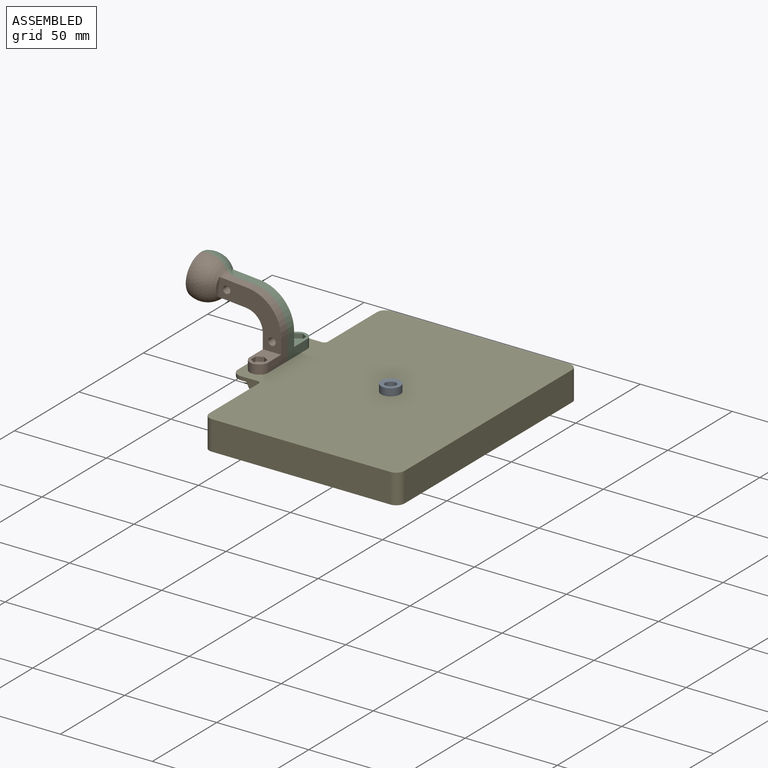
[diagram: assembled view]
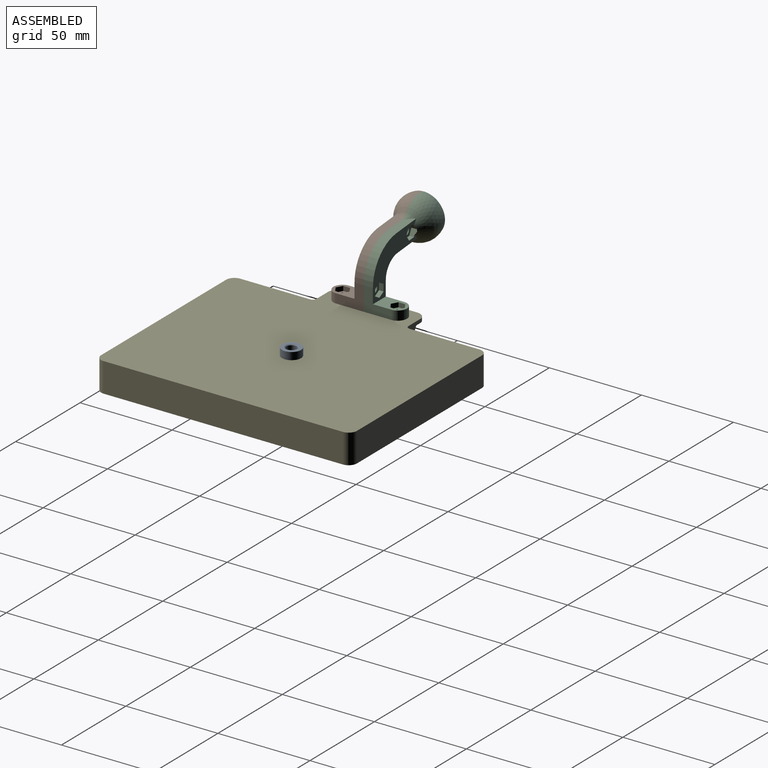
[diagram: assembled view, second angle]
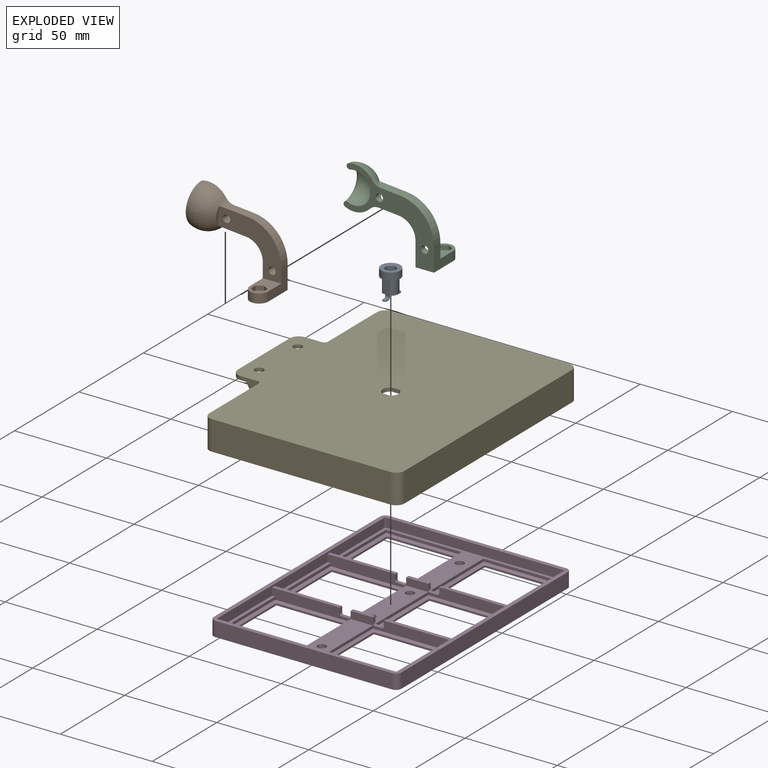
[diagram: exploded view]
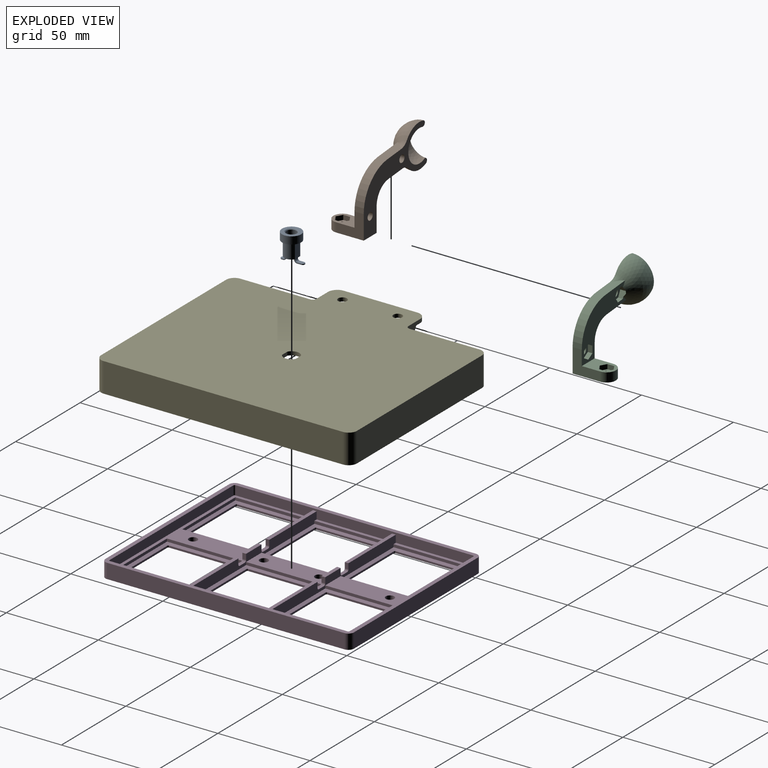
[diagram: exploded view, second angle]
ASSEMBLY  parts=5 mates=5
PART A: 36 faces, bbox 12.8x10.4x14.5 mm
  f0: plane 7.8x6.56mm, normal (0,0,1), area 41.9mm2, adj f1,f2,f12,f13,f15,f16,f17,f18
  f1: cylinder r=3.9mm len=8mm, axis (0,0,1), area 62.3mm2, adj f0,f3,f12,f13
  f2: cylinder r=3.9mm len=8mm, axis (0,0,1), area 62.3mm2, adj f0,f3,f12,f13
  f3: plane 10.4x10.4mm, normal (0,0,1), area 40.7mm2, adj f1,f2,f4,f12,f13
  f4: cylinder r=5.2mm len=10.4mm, axis (0,0,1), area 130.7mm2, adj f3,f5
  f5: plane 10.4x10.4mm, normal (0,0,-1), area 52.8mm2, adj f4,f6
  f6: cone r=2.8mm half-angle=45deg, axis (0,0,-1), area 10.7mm2, adj f5,f7
  f7: cylinder r=2.8mm len=9.1mm, axis (0,0,1), area 160.1mm2, adj f6,f8
  f8: plane 5.6x5.6mm, normal (0,0,-1), area 21.5mm2, adj f7,f9
  f9: cylinder r=1mm len=6.1mm, axis (0,0,1), area 38.3mm2, adj f8,f10
  f10: torus R=0.4mm, axis (0,0,1), area 4.6mm2, adj f9,f11
  f11: plane 0.8x0.8mm, normal (0,0,-1), area 0.5mm2, adj f10
  f12: plane 8x4.22mm, normal (1,0,0), area 33.8mm2, adj f0,f1,f2,f3
  f13: plane 8x4.22mm, normal (-1,0,0), area 33.8mm2, adj f0,f1,f2,f3
  f14: plane 0.5x0.12mm, normal (-1,0,0), area 0.1mm2, adj f21,f22,f34,f35
  f15: plane 3.9x2.3mm, normal (0,1,0), area 2.6mm2, adj f0,f16,f18,f19,f20,f21,f22,f35
  f16: plane 2.32x0.8mm, normal (-1,0,0), area 1.9mm2, adj f0,f15,f17,f19
  f17: plane 3.9x2.3mm, normal (0,-1,0), area 2.6mm2, adj f0,f16,f18,f19,f20,f21,f22,f34
  f18: plane 2.32x0.8mm, normal (1,0,0), area 1.9mm2, adj f0,f15,f17,f20
  f19: cylinder r=1mm len=2.32mm, axis (0,-1,0), area 3.6mm2, adj f15,f16,f17,f21
  f20: cylinder r=1.5mm len=2.32mm, axis (0,-1,0), area 5.5mm2, adj f15,f17,f18,f22
  f21: plane 3.5x2.32mm, normal (0,0,-1), area 7.6mm2, adj f14,f15,f17,f19,f34,f35
  f22: plane 3.5x2.32mm, normal (0,0,1), area 7.6mm2, adj f14,f15,f17,f20,f34,f35
  f23: plane 0.5x0.12mm, normal (1,0,0), area 0.1mm2, adj f30,f31,f32,f33
  f24: plane 2.5x2.4mm, normal (0,1,0), area 1.9mm2, adj f0,f25,f27,f28,f29,f30,f31,f33
  f25: plane 2.32x1mm, normal (-1,0,0), area 2.3mm2, adj f0,f24,f26,f28
  f26: plane 2.5x2.4mm, normal (0,-1,0), area 1.9mm2, adj f0,f25,f27,f28,f29,f30,f31,f32
  f27: plane 2.32x1mm, normal (1,0,0), area 2.3mm2, adj f0,f24,f26,f29
  f28: cylinder r=1.5mm len=2.32mm, axis (0,1,0), area 5.5mm2, adj f24,f25,f26,f30
  f29: cylinder r=1mm len=2.32mm, axis (0,1,0), area 3.6mm2, adj f24,f26,f27,f31
  f30: plane 2.32x2mm, normal (0,0,1), area 4.1mm2, adj f23,f24,f26,f28,f32,f33
  f31: plane 2.32x2mm, normal (0,0,-1), area 4.1mm2, adj f23,f24,f26,f29,f32,f33
  f32: cylinder r=1.1mm len=1.1mm, axis (0,0,-1), area 0.9mm2, adj f23,f26,f30,f31
  f33: cylinder r=1.1mm len=1.1mm, axis (0,0,1), area 0.9mm2, adj f23,f24,f30,f31
  f34: cylinder r=1.1mm len=1.1mm, axis (0,0,1), area 0.9mm2, adj f14,f17,f21,f22
  f35: cylinder r=1.1mm len=1.1mm, axis (0,0,-1), area 0.9mm2, adj f14,f15,f21,f22
PART B: 26 faces, bbox 20x49.2x42.4 mm
  f0: cylinder r=2mm len=5mm, axis (-1,0,0), area 62.8mm2, adj f10,f11
  f1: cylinder r=2mm len=4mm, axis (0,0,1), area 31.4mm2, adj f13,f17
  f2: plane 15x10mm, normal (0,0,1), area 102.7mm2, adj f6,f7,f10,f12,f18,f19,f20,f21
  f3: torus R=11mm, axis (0,1,0.09), area 32.4mm2, adj f4,f9,f11,f16,f25
  f4: plane 15.31x5mm, normal (0,-0.09,1), area 66.6mm2, adj f3,f5,f10,f11
  f5: cylinder r=20mm len=19.92mm, axis (1,0,0), area 148.4mm2, adj f4,f6,f10,f11
  f6: plane 15x13mm, normal (0,-1,0), area 115mm2, adj f2,f5,f10,f11,f12,f13
  f7: plane 15x13mm, normal (0,1,0), area 115mm2, adj f2,f8,f10,f11,f12,f13
  f8: cylinder r=10mm len=9.96mm, axis (1,0,0), area 74.2mm2, adj f7,f9,f10,f11
  f9: plane 15.31x5mm, normal (0,0.09,-1), area 66.6mm2, adj f3,f8,f10,f11
  f10: plane 34.44x29.26mm, normal (-1,0,0), area 431.1mm2, adj f0,f2,f4,f5,f6,f7,f8,f9
  f11: plane 49.11x41.8mm, normal (1,0,0), area 588.6mm2, adj f0,f3,f4,f5,f6,f7,f8,f9
  f12: cylinder r=5mm len=10mm, axis (0,0,1), area 78.5mm2, adj f2,f6,f7,f13
  f13: plane 20x10mm, normal (0,0,-1), area 176.7mm2, adj f1,f6,f7,f11,f12
  f14: sphere r=8.7mm, area 319.1mm2, adj f11,f15
  f15: torus R=9.58mm, axis (0,1,0.09), area 137.1mm2, adj f11,f14,f16
  f16: sphere r=11.7mm, area 484mm2, adj f3,f11,f15
  f17: plane 7.51x6.5mm, normal (0,0,1), area 24mm2, adj f1,f18,f19,f20,f21,f22,f23
  f18: plane 3.25x2.5mm, normal (-0.87,0.5,0), area 9.4mm2, adj f2,f17,f19,f23
  f19: plane 3.25x2.5mm, normal (-0.87,-0.5,0), area 9.4mm2, adj f2,f17,f18,f20
  f20: plane 3.75x2.5mm, normal (0,-1,0), area 9.4mm2, adj f2,f17,f19,f21
  f21: plane 3.25x2.5mm, normal (0.87,-0.5,0), area 9.4mm2, adj f2,f17,f20,f22
  f22: plane 3.25x2.5mm, normal (0.87,0.5,0), area 9.4mm2, adj f2,f17,f21,f23
  f23: plane 3.75x2.5mm, normal (0,1,0), area 9.4mm2, adj f2,f17,f18,f22
  f24: cylinder r=2mm len=5mm, axis (-1,0,0), area 62.8mm2, adj f10,f11
  f25: plane 9.96x2.07mm, normal (0,-1,-0.09), area 14.3mm2, adj f3,f10
PART C: 40 faces, bbox 20.5x49.7x42.9 mm
  f0: torus R=11mm, axis (0,-1,-0.09), area 46.7mm2, adj f1,f6,f11,f12,f17,f33,f38,f39
  f1: plane 34.61x29.44mm, normal (1,0,0), area 371.8mm2, adj f0,f4,f6,f7,f8,f9,f10,f11
  f2: cylinder r=2mm len=4mm, axis (1,0,0), area 31.4mm2, adj f12,f32
  f3: cylinder r=2mm len=4mm, axis (1,0,0), area 31.4mm2, adj f12,f25
  f4: plane 15x10mm, normal (0,0,1), area 102.7mm2, adj f1,f8,f9,f13,f19,f20,f21,f22
  f5: cylinder r=2mm len=4mm, axis (0,0,1), area 31.4mm2, adj f14,f18
  f6: plane 15.84x5.53mm, normal (0,-0.09,1), area 66.6mm2, adj f0,f1,f7,f12
  f7: cylinder r=20mm len=19.92mm, axis (-1,0,0), area 148.4mm2, adj f1,f6,f8,f12
  f8: plane 15x13mm, normal (0,-1,0), area 115mm2, adj f1,f4,f7,f12,f13,f14
  f9: plane 15x13mm, normal (0,1,0), area 115mm2, adj f1,f4,f10,f12,f13,f14
  f10: cylinder r=10mm len=9.96mm, axis (-1,0,0), area 74.2mm2, adj f1,f9,f11,f12
  f11: plane 15.84x5.53mm, normal (0,0.09,-1), area 66.6mm2, adj f0,f1,f10,f12
  f12: plane 49.11x41.8mm, normal (-1,0,0), area 588.6mm2, adj f0,f2,f3,f6,f7,f8,f9,f10
  f13: cylinder r=5mm len=10mm, axis (0,0,1), area 78.5mm2, adj f4,f8,f9,f14
  f14: plane 20x10mm, normal (0,0,-1), area 176.7mm2, adj f5,f8,f9,f12,f13
  f15: sphere r=8.7mm, area 319.1mm2, adj f12,f16
  f16: torus R=9.58mm, axis (0,-1,-0.09), area 137.1mm2, adj f12,f15,f17
  f17: sphere r=11.7mm, area 484mm2, adj f0,f12,f16
  f18: plane 7.51x6.5mm, normal (0,0,1), area 24mm2, adj f5,f19,f20,f21,f22,f23,f24
  f19: plane 3.25x2.5mm, normal (0.87,0.5,0), area 9.4mm2, adj f4,f18,f20,f24
  f20: plane 3.75x2.5mm, normal (0,1,0), area 9.4mm2, adj f4,f18,f19,f21
  f21: plane 3.25x2.5mm, normal (-0.87,0.5,0), area 9.4mm2, adj f4,f18,f20,f22
  f22: plane 3.25x2.5mm, normal (-0.87,-0.5,0), area 9.4mm2, adj f4,f18,f21,f23
  f23: plane 3.75x2.5mm, normal (0,-1,0), area 9.4mm2, adj f4,f18,f22,f24
  f24: plane 3.25x2.5mm, normal (0.87,-0.5,0), area 9.4mm2, adj f4,f18,f19,f23
  f25: plane 7.51x6.5mm, normal (1,0,0), area 24mm2, adj f3,f26,f27,f28,f29,f30,f31
  f26: plane 3.25x2.5mm, normal (0,-0.5,-0.87), area 9.4mm2, adj f1,f25,f27,f31
  f27: plane 3.25x2.5mm, normal (0,0.5,-0.87), area 9.4mm2, adj f1,f25,f26,f28
  f28: plane 3.75x2.5mm, normal (0,1,0), area 9.4mm2, adj f1,f25,f27,f29
  f29: plane 3.25x2.5mm, normal (0,0.5,0.87), area 9.4mm2, adj f1,f25,f28,f30
  f30: plane 3.25x2.5mm, normal (0,-0.5,0.87), area 9.4mm2, adj f1,f25,f29,f31
  f31: plane 3.75x2.5mm, normal (0,-1,0), area 9.4mm2, adj f1,f25,f26,f30
  f32: plane 7.48x6.8mm, normal (1,0,0), area 24mm2, adj f2,f33,f34,f35,f36,f37,f38
  f33: plane 3.58x3.15mm, normal (0,-0.82,-0.57), area 11.3mm2, adj f0,f1,f32,f34,f38,f39
  f34: plane 3.74x2.5mm, normal (0,0.09,-1), area 9.4mm2, adj f1,f32,f33,f35
  f35: plane 3.4x2.5mm, normal (0,0.91,-0.42), area 9.4mm2, adj f1,f32,f34,f36
  f36: plane 3.07x2.5mm, normal (0,0.82,0.57), area 9.4mm2, adj f1,f32,f35,f37
  f37: plane 3.74x2.5mm, normal (0,-0.09,1), area 9.4mm2, adj f1,f32,f36,f38
  f38: plane 3.58x3.48mm, normal (0,-0.91,0.42), area 11.3mm2, adj f0,f1,f32,f33,f37,f39
  f39: plane 1.76x0.62mm, normal (-1,0,0), area 0.6mm2, adj f0,f33,f38
PART D: 175 faces, bbox 102x135x8 mm
  f0: plane 12x2mm, normal (0,0,1), area 24mm2, adj f4,f5,f165,f174
  f1: plane 36.75x2mm, normal (0,0,1), area 73.5mm2, adj f4,f5,f145,f169
  f2: plane 12x2mm, normal (0,0,1), area 24mm2, adj f6,f7,f159,f160
  f3: plane 36.75x2mm, normal (0,0,1), area 73.5mm2, adj f6,f7,f145,f155
  f4: plane 97.5x5.5mm, normal (0,-1,0), area 465.9mm2, adj f0,f1,f14,f16,f51,f52,f59,f61
  f5: plane 97.5x5.5mm, normal (0,1,0), area 465.9mm2, adj f0,f1,f8,f9,f11,f15,f49,f62
  f6: plane 97.5x5.5mm, normal (0,1,0), area 465.9mm2, adj f2,f3,f10,f12,f13,f53,f55,f56
  f7: plane 97.5x5.5mm, normal (0,-1,0), area 465.9mm2, adj f2,f3,f8,f9,f11,f15,f49,f62
  f8: plane 41x1.75mm, normal (0,0,1), area 71.8mm2, adj f5,f7,f65,f149
  f9: plane 41x12mm, normal (0,0,1), area 458.8mm2, adj f5,f7,f63,f64,f141,f142
  f10: plane 97.5x42.75mm, normal (0,0,1), area 789.3mm2, adj f6,f53,f54,f55,f56,f57,f58,f140
  f11: plane 41x1.75mm, normal (0,0,1), area 71.8mm2, adj f5,f7,f62,f145
  f12: plane 41x41mm, normal (0,0,1), area 26.7mm2, adj f6,f53,f54,f55,f92,f93,f94,f95
  f13: plane 41x41mm, normal (0,0,1), area 26.7mm2, adj f6,f56,f57,f58,f100,f101,f102,f103
  f14: plane 41x41mm, normal (0,0,1), area 26.7mm2, adj f4,f59,f60,f61,f116,f117,f118,f119
  f15: plane 41x41mm, normal (0,0,1), area 26.7mm2, adj f5,f7,f62,f63,f132,f133,f134,f135
  f16: plane 41x41mm, normal (0,0,1), area 26.7mm2, adj f4,f51,f52,f66,f124,f125,f126,f127
  f17: plane 36x1mm, normal (0,1,0), area 36mm2, adj f50,f88,f91,f111
  f18: plane 36x1mm, normal (1,0,0), area 36mm2, adj f50,f88,f89,f115
  f19: plane 36x1mm, normal (0,-1,0), area 36mm2, adj f50,f89,f90,f112
  f20: plane 36x1mm, normal (0,1,0), area 36mm2, adj f50,f84,f87,f132
  f21: plane 36x1mm, normal (1,0,0), area 36mm2, adj f50,f84,f85,f135
  f22: plane 36x1mm, normal (0,-1,0), area 36mm2, adj f50,f85,f86,f139
  f23: plane 36x1mm, normal (0,1,0), area 36mm2, adj f50,f80,f83,f119
  f24: plane 36x1mm, normal (1,0,0), area 36mm2, adj f50,f80,f81,f123
  f25: plane 36x1mm, normal (0,-1,0), area 36mm2, adj f50,f81,f82,f120
  f26: plane 36x1mm, normal (0,1,0), area 36mm2, adj f50,f76,f79,f127
  f27: plane 36x1mm, normal (1,0,0), area 36mm2, adj f50,f76,f77,f131
  f28: plane 36x1mm, normal (0,-1,0), area 36mm2, adj f50,f77,f78,f128
  f29: plane 36x1mm, normal (0,1,0), area 36mm2, adj f50,f72,f75,f103
  f30: plane 36x1mm, normal (1,0,0), area 36mm2, adj f50,f72,f73,f107
  f31: plane 36x1mm, normal (0,-1,0), area 36mm2, adj f50,f73,f74,f104
  f32: plane 36x1mm, normal (0,1,0), area 36mm2, adj f50,f68,f71,f95
  f33: plane 36x1mm, normal (1,0,0), area 36mm2, adj f50,f68,f69,f99
  f34: plane 36x1mm, normal (0,-1,0), area 36mm2, adj f50,f69,f70,f96
  f35: plane 96x8mm, normal (0,1,0), area 768mm2, adj f36,f47,f50,f152
  f36: cylinder r=3mm len=8mm, axis (0,0,-1), area 37.7mm2, adj f35,f37,f50,f152
  f37: plane 129x8mm, normal (-1,0,0), area 1032mm2, adj f36,f38,f50,f152
  f38: cylinder r=3mm len=8mm, axis (0,0,-1), area 37.7mm2, adj f37,f39,f50,f152
  f39: plane 96x8mm, normal (0,-1,0), area 768mm2, adj f38,f40,f50,f152
  f40: cylinder r=3mm len=8mm, axis (0,0,-1), area 37.7mm2, adj f39,f41,f50,f152
  f41: plane 129x8mm, normal (1,0,0), area 1032mm2, adj f40,f47,f50,f152
  f42: plane 36x1mm, normal (-1,0,0), area 36mm2, adj f50,f86,f87,f136
  f43: plane 36x1mm, normal (-1,0,0), area 36mm2, adj f50,f82,f83,f116
  f44: plane 36x1mm, normal (-1,0,0), area 36mm2, adj f50,f78,f79,f124
  f45: plane 36x1mm, normal (-1,0,0), area 36mm2, adj f50,f74,f75,f100
  f46: plane 36x1mm, normal (-1,0,0), area 36mm2, adj f50,f70,f71,f92
  f47: cylinder r=3mm len=8mm, axis (0,0,-1), area 37.7mm2, adj f35,f41,f50,f152
  f48: plane 36x1mm, normal (-1,0,0), area 36mm2, adj f50,f90,f91,f108
  f49: plane 41x41mm, normal (0,0,1), area 26.7mm2, adj f5,f7,f64,f65,f108,f109,f110,f111
  f50: plane 135x102mm, normal (0,0,-1), area 5483.1mm2, adj f17,f18,f19,f20,f21,f22,f23,f24
  f51: plane 41x1.5mm, normal (1,0,0), area 61.5mm2, adj f4,f16,f66,f67
  f52: plane 41x1.5mm, normal (-1,0,0), area 61.5mm2, adj f4,f16,f66,f67
  f53: plane 41x1.5mm, normal (1,0,0), area 61.5mm2, adj f6,f10,f12,f54
  f54: plane 41x1.5mm, normal (0,-1,0), area 61.5mm2, adj f10,f12,f53,f55
  f55: plane 41x1.5mm, normal (-1,0,0), area 61.5mm2, adj f6,f10,f12,f54
  f56: plane 41x1.5mm, normal (1,0,0), area 61.5mm2, adj f6,f10,f13,f57
  f57: plane 41x1.5mm, normal (0,-1,0), area 61.5mm2, adj f10,f13,f56,f58
  f58: plane 41x1.5mm, normal (-1,0,0), area 61.5mm2, adj f6,f10,f13,f57
  f59: plane 41x1.5mm, normal (-1,0,0), area 61.5mm2, adj f4,f14,f60,f67
  f60: plane 41x1.5mm, normal (0,1,0), area 61.5mm2, adj f14,f59,f61,f67
  f61: plane 41x1.5mm, normal (1,0,0), area 61.5mm2, adj f4,f14,f60,f67
  f62: plane 41x1.5mm, normal (-1,0,0), area 61.5mm2, adj f5,f7,f11,f15
  f63: plane 41x1.5mm, normal (1,0,0), area 61.5mm2, adj f5,f7,f9,f15
  f64: plane 41x1.5mm, normal (-1,0,0), area 61.5mm2, adj f5,f7,f9,f49
  f65: plane 41x1.5mm, normal (1,0,0), area 61.5mm2, adj f5,f7,f8,f49
  f66: plane 41x1.5mm, normal (0,1,0), area 61.5mm2, adj f16,f51,f52,f67
  f67: plane 97.5x42.75mm, normal (0,0,1), area 789.3mm2, adj f4,f51,f52,f59,f60,f61,f66,f143
  f68: cylinder r=0.5mm len=1mm, axis (0,0,-1), area 0.8mm2, adj f32,f33,f50,f97
  f69: cylinder r=0.5mm len=1mm, axis (0,0,1), area 0.8mm2, adj f33,f34,f50,f98
  f70: cylinder r=0.5mm len=1mm, axis (0,0,-1), area 0.8mm2, adj f34,f46,f50,f94
  f71: cylinder r=0.5mm len=1mm, axis (0,0,1), area 0.8mm2, adj f32,f46,f50,f93
  f72: cylinder r=0.5mm len=1mm, axis (0,0,-1), area 0.8mm2, adj f29,f30,f50,f105
  f73: cylinder r=0.5mm len=1mm, axis (0,0,1), area 0.8mm2, adj f30,f31,f50,f106
  f74: cylinder r=0.5mm len=1mm, axis (0,0,-1), area 0.8mm2, adj f31,f45,f50,f102
  f75: cylinder r=0.5mm len=1mm, axis (0,0,1), area 0.8mm2, adj f29,f45,f50,f101
  f76: cylinder r=0.5mm len=1mm, axis (0,0,-1), area 0.8mm2, adj f26,f27,f50,f129
  f77: cylinder r=0.5mm len=1mm, axis (0,0,1), area 0.8mm2, adj f27,f28,f50,f130
  f78: cylinder r=0.5mm len=1mm, axis (0,0,-1), area 0.8mm2, adj f28,f44,f50,f126
  f79: cylinder r=0.5mm len=1mm, axis (0,0,1), area 0.8mm2, adj f26,f44,f50,f125
  f80: cylinder r=0.5mm len=1mm, axis (0,0,-1), area 0.8mm2, adj f23,f24,f50,f121
  f81: cylinder r=0.5mm len=1mm, axis (0,0,1), area 0.8mm2, adj f24,f25,f50,f122
  f82: cylinder r=0.5mm len=1mm, axis (0,0,-1), area 0.8mm2, adj f25,f43,f50,f118
  f83: cylinder r=0.5mm len=1mm, axis (0,0,1), area 0.8mm2, adj f23,f43,f50,f117
  f84: cylinder r=0.5mm len=1mm, axis (0,0,-1), area 0.8mm2, adj f20,f21,f50,f133
  f85: cylinder r=0.5mm len=1mm, axis (0,0,1), area 0.8mm2, adj f21,f22,f50,f137
  f86: cylinder r=0.5mm len=1mm, axis (0,0,-1), area 0.8mm2, adj f22,f42,f50,f138
  f87: cylinder r=0.5mm len=1mm, axis (0,0,1), area 0.8mm2, adj f20,f42,f50,f134
  f88: cylinder r=0.5mm len=1mm, axis (0,0,-1), area 0.8mm2, adj f17,f18,f50,f113
  f89: cylinder r=0.5mm len=1mm, axis (0,0,1), area 0.8mm2, adj f18,f19,f50,f114
  f90: cylinder r=0.5mm len=1mm, axis (0,0,-1), area 0.8mm2, adj f19,f48,f50,f110
  f91: cylinder r=0.5mm len=1mm, axis (0,0,1), area 0.8mm2, adj f17,f48,f50,f109
  f92: plane 36x1.87mm, normal (-0.26,0,0.97), area 69.5mm2, adj f12,f46,f93,f94
  f93: cone r=2.37mm half-angle=75deg, axis (0,0,1), area 4.3mm2, adj f12,f71,f92,f95
  f94: cone r=2.37mm half-angle=75deg, axis (0,0,1), area 4.3mm2, adj f12,f70,f92,f96
  f95: plane 36x1.87mm, normal (0,0.26,0.97), area 69.5mm2, adj f12,f32,f93,f97
  f96: plane 36x1.87mm, normal (0,-0.26,0.97), area 69.5mm2, adj f12,f34,f94,f98
  f97: cone r=2.37mm half-angle=75deg, axis (0,0,1), area 4.3mm2, adj f12,f68,f95,f99
  f98: cone r=2.37mm half-angle=75deg, axis (0,0,1), area 4.3mm2, adj f12,f69,f96,f99
  f99: plane 36x1.87mm, normal (0.26,0,0.97), area 69.5mm2, adj f12,f33,f97,f98
  f100: plane 36x1.87mm, normal (-0.26,0,0.97), area 69.5mm2, adj f13,f45,f101,f102
  f101: cone r=2.37mm half-angle=75deg, axis (0,0,1), area 4.3mm2, adj f13,f75,f100,f103
  f102: cone r=2.37mm half-angle=75deg, axis (0,0,1), area 4.3mm2, adj f13,f74,f100,f104
  f103: plane 36x1.87mm, normal (0,0.26,0.97), area 69.5mm2, adj f13,f29,f101,f105
  f104: plane 36x1.87mm, normal (0,-0.26,0.97), area 69.5mm2, adj f13,f31,f102,f106
  f105: cone r=2.37mm half-angle=75deg, axis (0,0,1), area 4.3mm2, adj f13,f72,f103,f107
  f106: cone r=2.37mm half-angle=75deg, axis (0,0,1), area 4.3mm2, adj f13,f73,f104,f107
  f107: plane 36x1.87mm, normal (0.26,0,0.97), area 69.5mm2, adj f13,f30,f105,f106
  f108: plane 36x1.87mm, normal (-0.26,0,0.97), area 69.5mm2, adj f48,f49,f109,f110
  f109: cone r=2.37mm half-angle=75deg, axis (0,0,1), area 4.3mm2, adj f49,f91,f108,f111
  f110: cone r=2.37mm half-angle=75deg, axis (0,0,1), area 4.3mm2, adj f49,f90,f108,f112
  f111: plane 36x1.87mm, normal (0,0.26,0.97), area 69.5mm2, adj f17,f49,f109,f113
  f112: plane 36x1.87mm, normal (0,-0.26,0.97), area 69.5mm2, adj f19,f49,f110,f114
  f113: cone r=2.37mm half-angle=75deg, axis (0,0,1), area 4.3mm2, adj f49,f88,f111,f115
  f114: cone r=2.37mm half-angle=75deg, axis (0,0,1), area 4.3mm2, adj f49,f89,f112,f115
  f115: plane 36x1.87mm, normal (0.26,0,0.97), area 69.5mm2, adj f18,f49,f113,f114
  f116: plane 36x1.87mm, normal (-0.26,0,0.97), area 69.5mm2, adj f14,f43,f117,f118
  f117: cone r=2.37mm half-angle=75deg, axis (0,0,1), area 4.3mm2, adj f14,f83,f116,f119
  f118: cone r=2.37mm half-angle=75deg, axis (0,0,1), area 4.3mm2, adj f14,f82,f116,f120
  f119: plane 36x1.87mm, normal (0,0.26,0.97), area 69.5mm2, adj f14,f23,f117,f121
  f120: plane 36x1.87mm, normal (0,-0.26,0.97), area 69.5mm2, adj f14,f25,f118,f122
  f121: cone r=2.37mm half-angle=75deg, axis (0,0,1), area 4.3mm2, adj f14,f80,f119,f123
  f122: cone r=2.37mm half-angle=75deg, axis (0,0,1), area 4.3mm2, adj f14,f81,f120,f123
  f123: plane 36x1.87mm, normal (0.26,0,0.97), area 69.5mm2, adj f14,f24,f121,f122
  f124: plane 36x1.87mm, normal (-0.26,0,0.97), area 69.5mm2, adj f16,f44,f125,f126
  f125: cone r=2.37mm half-angle=75deg, axis (0,0,1), area 4.3mm2, adj f16,f79,f124,f127
  f126: cone r=2.37mm half-angle=75deg, axis (0,0,1), area 4.3mm2, adj f16,f78,f124,f128
  f127: plane 36x1.87mm, normal (0,0.26,0.97), area 69.5mm2, adj f16,f26,f125,f129
  f128: plane 36x1.87mm, normal (0,-0.26,0.97), area 69.5mm2, adj f16,f28,f126,f130
  f129: cone r=2.37mm half-angle=75deg, axis (0,0,1), area 4.3mm2, adj f16,f76,f127,f131
  f130: cone r=2.37mm half-angle=75deg, axis (0,0,1), area 4.3mm2, adj f16,f77,f128,f131
  f131: plane 36x1.87mm, normal (0.26,0,0.97), area 69.5mm2, adj f16,f27,f129,f130
  f132: plane 36x1.87mm, normal (0,0.26,0.97), area 69.5mm2, adj f15,f20,f133,f134
  f133: cone r=2.37mm half-angle=75deg, axis (0,0,1), area 4.3mm2, adj f15,f84,f132,f135
  f134: cone r=2.37mm half-angle=75deg, axis (0,0,1), area 4.3mm2, adj f15,f87,f132,f136
  f135: plane 36x1.87mm, normal (0.26,0,0.97), area 69.5mm2, adj f15,f21,f133,f137
  f136: plane 36x1.87mm, normal (-0.26,0,0.97), area 69.5mm2, adj f15,f42,f134,f138
  f137: cone r=2.37mm half-angle=75deg, axis (0,0,1), area 4.3mm2, adj f15,f85,f135,f139
  f138: cone r=2.37mm half-angle=75deg, axis (0,0,1), area 4.3mm2, adj f15,f86,f136,f139
  f139: plane 36x1.87mm, normal (0,-0.26,0.97), area 69.5mm2, adj f15,f22,f137,f138
  f140: cylinder r=2.3mm len=4.6mm, axis (0,0,-1), area 43.4mm2, adj f10,f50
  f141: cylinder r=2.3mm len=4.6mm, axis (0,0,-1), area 43.4mm2, adj f9,f50
  f142: cylinder r=2.3mm len=4.6mm, axis (0,0,-1), area 43.4mm2, adj f9,f50
  f143: cylinder r=2.3mm len=4.6mm, axis (0,0,-1), area 43.4mm2, adj f50,f67
  f144: cylinder r=0.75mm len=5mm, axis (0,0,-1), area 5.9mm2, adj f10,f145,f151,f152
  f145: plane 129x5mm, normal (-1,0,0), area 629mm2, adj f1,f3,f4,f5,f6,f7,f10,f11
  f146: cylinder r=0.75mm len=5mm, axis (0,0,-1), area 5.9mm2, adj f67,f145,f147,f152
  f147: plane 96x5mm, normal (0,1,0), area 480mm2, adj f67,f146,f148,f152
  f148: cylinder r=0.75mm len=5mm, axis (0,0,-1), area 5.9mm2, adj f67,f147,f149,f152
  f149: plane 129x5mm, normal (1,0,0), area 629mm2, adj f4,f5,f6,f7,f8,f10,f67,f148
  f150: cylinder r=0.75mm len=5mm, axis (0,0,-1), area 5.9mm2, adj f10,f149,f151,f152
  f151: plane 96x5mm, normal (0,-1,0), area 480mm2, adj f10,f144,f150,f152
  f152: plane 135x102mm, normal (0,0,1), area 1039mm2, adj f35,f36,f37,f38,f39,f40,f41,f47
  f153: plane 36.75x2mm, normal (0,0,1), area 73.5mm2, adj f4,f5,f149,f170
  f154: plane 36.75x2mm, normal (0,0,1), area 73.5mm2, adj f6,f7,f149,f164
  f155: plane 3x2mm, normal (-1,0,0), area 6mm2, adj f3,f6,f7,f156
  f156: cylinder r=1mm len=2mm, axis (0,-1,0), area 3.1mm2, adj f6,f7,f155,f157
  f157: plane 4x2mm, normal (0,0,1), area 8mm2, adj f6,f7,f156,f158
  f158: cylinder r=1mm len=2mm, axis (0,-1,0), area 3.1mm2, adj f6,f7,f157,f159
  f159: plane 3x2mm, normal (1,0,0), area 6mm2, adj f2,f6,f7,f158
  f160: plane 3x2mm, normal (-1,0,0), area 6mm2, adj f2,f6,f7,f161
  f161: cylinder r=1mm len=2mm, axis (0,-1,0), area 3.1mm2, adj f6,f7,f160,f162
  f162: plane 4x2mm, normal (0,0,1), area 8mm2, adj f6,f7,f161,f163
  f163: cylinder r=1mm len=2mm, axis (0,-1,0), area 3.1mm2, adj f6,f7,f162,f164
  f164: plane 3x2mm, normal (1,0,0), area 6mm2, adj f6,f7,f154,f163
  f165: plane 3x2mm, normal (1,0,0), area 6mm2, adj f0,f4,f5,f166
  f166: cylinder r=1mm len=2mm, axis (0,-1,0), area 3.1mm2, adj f4,f5,f165,f167
  f167: plane 4x2mm, normal (0,0,1), area 8mm2, adj f4,f5,f166,f168
  f168: cylinder r=1mm len=2mm, axis (0,-1,0), area 3.1mm2, adj f4,f5,f167,f169
  f169: plane 3x2mm, normal (-1,0,0), area 6mm2, adj f1,f4,f5,f168
  f170: plane 3x2mm, normal (1,0,0), area 6mm2, adj f4,f5,f153,f171
  f171: cylinder r=1mm len=2mm, axis (0,-1,0), area 3.1mm2, adj f4,f5,f170,f172
  f172: plane 4x2mm, normal (0,0,1), area 8mm2, adj f4,f5,f171,f173
  f173: cylinder r=1mm len=2mm, axis (0,-1,0), area 3.1mm2, adj f4,f5,f172,f174
  f174: plane 3x2mm, normal (-1,0,0), area 6mm2, adj f0,f4,f5,f173
PART E: 88 faces, bbox 122x139x16 mm
  f0: plane 50x16mm, normal (0,0,-1), area 710.9mm2, adj f1,f11,f12,f13,f14,f15,f21,f22
  f1: plane 41x14mm, normal (-1,0,0), area 574mm2, adj f0,f34,f50,f51
  f2: plane 38x16mm, normal (-1,0,0), area 608mm2, adj f23,f24,f34,f53
  f3: plane 136x103mm, normal (0,0,-1), area 940mm2, adj f25,f26,f27,f28,f29,f30,f31,f32
  f4: plane 132x99mm, normal (0,0,-1), area 12504mm2, adj f17,f18,f19,f20,f25,f26,f27,f28
  f5: plane 97x16mm, normal (0,-1,0), area 1552mm2, adj f6,f23,f24,f34
  f6: cylinder r=4.5mm len=16mm, axis (0,0,1), area 113.1mm2, adj f5,f7,f24,f34
  f7: plane 130x16mm, normal (1,0,0), area 2080mm2, adj f6,f8,f24,f34
  f8: cylinder r=4.5mm len=16mm, axis (0,0,1), area 113.1mm2, adj f7,f9,f24,f34
  f9: plane 97x16mm, normal (0,1,0), area 1552mm2, adj f8,f10,f24,f34
  f10: cylinder r=4.5mm len=16mm, axis (0,0,1), area 113.1mm2, adj f9,f16,f24,f34
  f11: plane 12.54x9mm, normal (0,1,0), area 50mm2, adj f0,f12,f24,f49,f52
  f12: cylinder r=5mm len=5mm, axis (0,0,1), area 15.7mm2, adj f0,f11,f13,f24
  f13: plane 40x2mm, normal (-1,0,0), area 80mm2, adj f0,f12,f14,f24
  f14: cylinder r=5mm len=5mm, axis (0,0,1), area 15.7mm2, adj f0,f13,f15,f24
  f15: plane 12.54x9mm, normal (0,-1,0), area 50mm2, adj f0,f14,f24,f47,f53
  f16: plane 38x16mm, normal (-1,0,0), area 608mm2, adj f10,f24,f34,f52
  f17: cylinder r=4.25mm len=7.4mm, axis (0,0,1), area 18mm2, adj f4,f18,f20,f24
  f18: plane 4.18x2mm, normal (0,1,0), area 8.4mm2, adj f4,f17,f19,f24
  f19: cylinder r=4.25mm len=7.4mm, axis (0,0,1), area 18mm2, adj f4,f18,f20,f24
  f20: plane 4.18x2mm, normal (0,-1,0), area 8.4mm2, adj f4,f17,f19,f24
  f21: cylinder r=2.4mm len=4.8mm, axis (0,0,1), area 30.2mm2, adj f0,f24
  f22: cylinder r=2.4mm len=4.8mm, axis (0,0,1), area 30.2mm2, adj f0,f24
  f23: cylinder r=4.5mm len=16mm, axis (0,0,1), area 113.1mm2, adj f2,f5,f24,f34
  f24: plane 139x122mm, normal (0,0,1), area 15417.8mm2, adj f2,f5,f6,f7,f8,f9,f10,f11
  f25: plane 126x6mm, normal (1,0,0), area 756mm2, adj f3,f4,f84,f87
  f26: plane 93x6mm, normal (0,1,0), area 558mm2, adj f3,f4,f84,f85
  f27: plane 126x6mm, normal (-1,0,0), area 756mm2, adj f3,f4,f85,f86
  f28: plane 93x6mm, normal (0,-1,0), area 558mm2, adj f3,f4,f86,f87
  f29: cylinder r=3mm len=8mm, axis (0,0,1), area 37.7mm2, adj f3,f30,f34,f35
  f30: plane 130x8mm, normal (1,0,0), area 1040mm2, adj f3,f29,f31,f34
  f31: cylinder r=3mm len=8mm, axis (0,0,1), area 37.7mm2, adj f3,f30,f32,f34
  f32: plane 97x8mm, normal (0,1,0), area 776mm2, adj f3,f31,f33,f34
  f33: cylinder r=3mm len=8mm, axis (0,0,1), area 37.7mm2, adj f3,f32,f34,f36
  f34: plane 139x106mm, normal (0,0,-1), area 716.3mm2, adj f1,f2,f5,f6,f7,f8,f9,f10
  f35: plane 97x8mm, normal (0,-1,0), area 776mm2, adj f3,f29,f34,f37
  f36: plane 130x8mm, normal (-1,0,0), area 1040mm2, adj f3,f33,f34,f37
  f37: cylinder r=3mm len=8mm, axis (0,0,1), area 37.7mm2, adj f3,f34,f35,f36
  f38: cone r=4mm half-angle=3deg, axis (0,0,1), area 256.9mm2, adj f4,f39
  f39: plane 6.85x6.85mm, normal (0,0,-1), area 21.6mm2, adj f38,f74
  f40: cone r=4mm half-angle=3deg, axis (0,0,1), area 256.9mm2, adj f4,f41
  f41: plane 6.85x6.85mm, normal (0,0,-1), area 21.6mm2, adj f40,f75
  f42: cone r=4mm half-angle=3deg, axis (0,0,1), area 256.9mm2, adj f4,f43
  f43: plane 6.85x6.85mm, normal (0,0,-1), area 21.6mm2, adj f42,f76
  f44: cone r=4mm half-angle=3deg, axis (0,0,1), area 256.9mm2, adj f4,f45
  f45: plane 6.85x6.85mm, normal (0,0,-1), area 21.6mm2, adj f44,f77
  f46: plane 10.54x6.08mm, normal (0,1,0), area 32mm2, adj f0,f47,f51
  f47: plane 14x8.08mm, normal (-0.87,0,-0.5), area 43.8mm2, adj f0,f15,f34,f46,f51,f53
  f48: plane 10.54x6.08mm, normal (0,-1,0), area 32mm2, adj f0,f49,f50
  f49: plane 14x8.08mm, normal (-0.87,0,-0.5), area 43.8mm2, adj f0,f11,f34,f48,f50,f52
  f50: cylinder r=2mm len=14mm, axis (0,0,1), area 40mm2, adj f0,f1,f48,f49
  f51: cylinder r=2mm len=14mm, axis (0,0,-1), area 40mm2, adj f0,f1,f46,f47
  f52: cylinder r=2mm len=16mm, axis (0,0,1), area 46.3mm2, adj f11,f16,f24,f49
  f53: cylinder r=2mm len=16mm, axis (0,0,1), area 46.3mm2, adj f2,f15,f24,f47
  f54: cylinder r=4mm len=8.5mm, axis (0,0,1), area 213.6mm2, adj f4,f79
  f55: plane 5x5mm, normal (0,0,-1), area 19.6mm2, adj f79
  f56: cylinder r=4mm len=8.5mm, axis (0,0,1), area 213.6mm2, adj f4,f78
  f57: plane 5x5mm, normal (0,0,-1), area 19.6mm2, adj f78
  f58: cylinder r=4mm len=8.5mm, axis (0,0,1), area 213.6mm2, adj f4,f82
  f59: plane 5x5mm, normal (0,0,-1), area 19.6mm2, adj f82
  f60: cylinder r=4mm len=8.5mm, axis (0,0,1), area 213.6mm2, adj f4,f83
  f61: plane 5x5mm, normal (0,0,-1), area 19.6mm2, adj f83
  f62: cylinder r=4mm len=8.5mm, axis (0,0,1), area 213.6mm2, adj f4,f81
  f63: plane 5x5mm, normal (0,0,-1), area 19.6mm2, adj f81
  f64: cylinder r=4mm len=8.5mm, axis (0,0,1), area 213.6mm2, adj f4,f80
  f65: plane 5x5mm, normal (0,0,-1), area 19.6mm2, adj f80
  f66: cylinder r=1.4mm len=10.2mm, axis (0,0,-1), area 89.7mm2, adj f67,f77
  f67: plane 2.8x2.8mm, normal (0,0,-1), area 6.2mm2, adj f66
  f68: cylinder r=1.4mm len=10.2mm, axis (0,0,-1), area 89.7mm2, adj f69,f76
  f69: plane 2.8x2.8mm, normal (0,0,-1), area 6.2mm2, adj f68
  f70: cylinder r=1.4mm len=10.2mm, axis (0,0,-1), area 89.7mm2, adj f71,f75
  f71: plane 2.8x2.8mm, normal (0,0,-1), area 6.2mm2, adj f70
  f72: cylinder r=1.4mm len=10.2mm, axis (0,0,-1), area 89.7mm2, adj f73,f74
  f73: plane 2.8x2.8mm, normal (0,0,-1), area 6.2mm2, adj f72
  f74: cone r=1.4mm half-angle=45deg, axis (0,0,-1), area 12.8mm2, adj f39,f72
  f75: cone r=1.4mm half-angle=45deg, axis (0,0,-1), area 12.8mm2, adj f41,f70
  f76: cone r=1.4mm half-angle=45deg, axis (0,0,-1), area 12.8mm2, adj f43,f68
  f77: cone r=1.4mm half-angle=45deg, axis (0,0,-1), area 12.8mm2, adj f45,f66
  f78: cone r=4mm half-angle=45deg, axis (0,0,1), area 43.3mm2, adj f56,f57
  f79: cone r=2.5mm half-angle=45deg, axis (0,0,1), area 43.3mm2, adj f54,f55
  f80: cone r=4mm half-angle=45deg, axis (0,0,1), area 43.3mm2, adj f64,f65
  f81: cone r=2.5mm half-angle=45deg, axis (0,0,1), area 43.3mm2, adj f62,f63
  f82: cone r=2.5mm half-angle=45deg, axis (0,0,1), area 43.3mm2, adj f58,f59
  f83: cone r=4mm half-angle=45deg, axis (0,0,1), area 43.3mm2, adj f60,f61
  f84: cylinder r=3mm len=6mm, axis (0,0,-1), area 28.3mm2, adj f3,f4,f25,f26
  f85: cylinder r=3mm len=6mm, axis (0,0,-1), area 28.3mm2, adj f3,f4,f26,f27
  f86: cylinder r=3mm len=6mm, axis (0,0,-1), area 28.3mm2, adj f3,f4,f27,f28
  f87: cylinder r=3mm len=6mm, axis (0,0,-1), area 28.3mm2, adj f3,f4,f25,f28
PLACE A rot(axis=(-0.71,0.71,0),180deg) t=(0,-15,-227)mm
PLACE B rot(axis=(0,0,1),90deg) t=(-61,-15,21)mm
PLACE C rot(axis=(0,0,1),90deg) t=(-61,-15,21)mm
PLACE D t=(0,-15,0)mm fixed
PLACE E t=(0,-15,-34)mm
MATE fastened B.f24 <-> C.f3  axis (0,1,0) through (-61,-15,26)mm
MATE fastened E.f42 <-> D.f142  axis (0,0,-1) through (0,0,3)mm
MATE fastened A.f1 <-> E.f19  axis (0,0,-1) through (0,-15,16)mm
MATE parallel A.f13 <-> E.f20  axis (0,1,0) through (0,-11.72,12)mm
MATE fastened B.f1 <-> E.f21  axis (0,0,-1) through (-61,-30,16)mm
